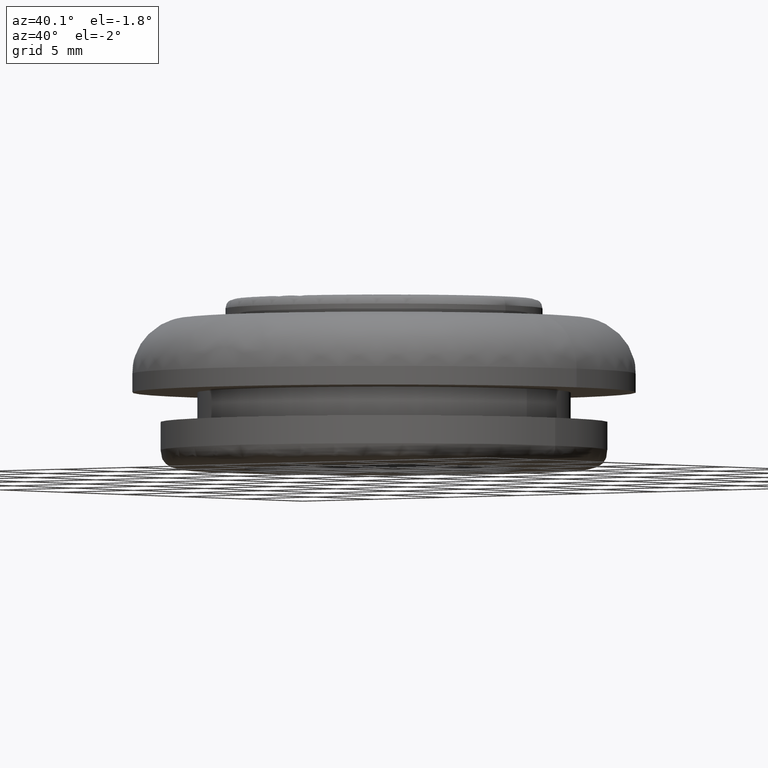
[diagram: clean part render]
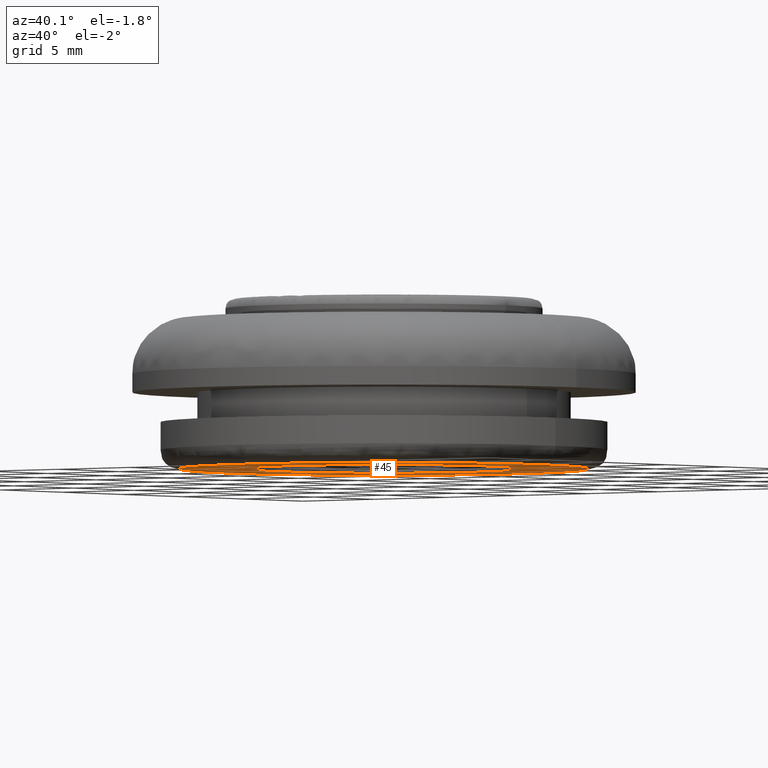
[diagram: same view with one face highlighted and labeled with its STEP entity id]
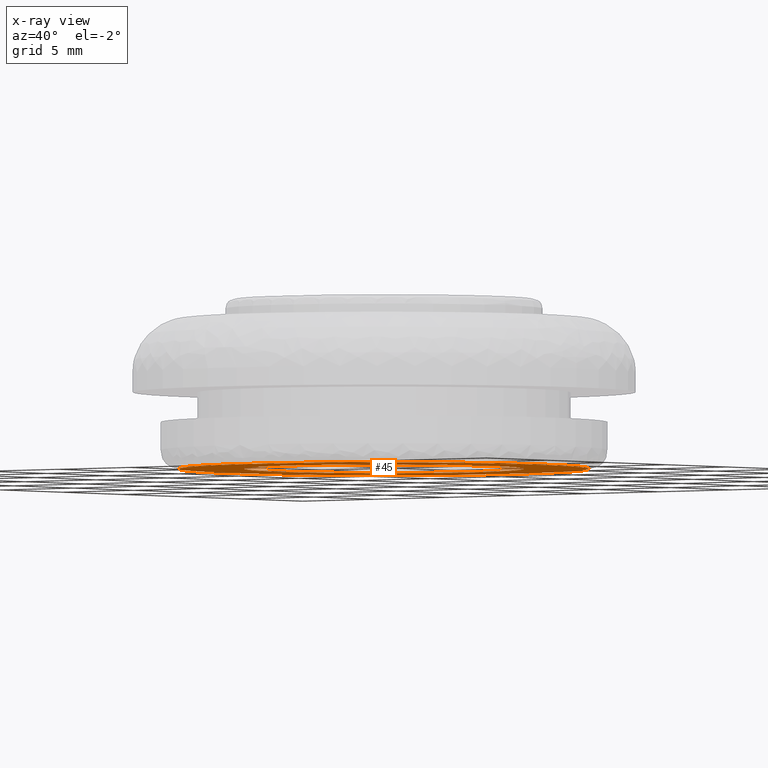
[diagram: x-ray of the same camera — body ghosted, the highlighted face saturated]
A machine part, auxiliary view. The second image highlights one B-rep face of the part: STEP entity #45.
The next image is the same camera in x-ray: the body ghosted, the highlighted face saturated — about 0% of this face is hidden behind the body in this view.
In plain terms, the highlighted planar face has unit normal (0, 0, 1).
Its self-contained STEP definition (entity closure, byte-faithful):
#45=ADVANCED_FACE('',(#118,#119),#117,.F.);
#117=PLANE('',#339);
#118=FACE_OUTER_BOUND('',#340,.T.);
#119=FACE_BOUND('',#341,.T.);
#336=CARTESIAN_POINT('',(2.62478069758E+002,-2.28630706599E+001,2.63637988893E+002));
#337=DIRECTION('',(0.00000000000E+000,0.00000000000E+000,1.00000000000E+000));
#338=DIRECTION('',(1.00000000000E+000,0.00000000000E+000,-0.00000000000E+000));
#339=AXIS2_PLACEMENT_3D('',#336,#337,#338);
#340=EDGE_LOOP('',(#574,#575));
#341=EDGE_LOOP('',(#576,#577));
#574=ORIENTED_EDGE('',*,*,#666,.T.);
#575=ORIENTED_EDGE('',*,*,#667,.T.);
#576=ORIENTED_EDGE('',*,*,#668,.F.);
#577=ORIENTED_EDGE('',*,*,#669,.F.);
#666=EDGE_CURVE('',#808,#809,#810,.T.);
#667=EDGE_CURVE('',#809,#808,#816,.T.);
#668=EDGE_CURVE('',#822,#823,#824,.T.);
#669=EDGE_CURVE('',#823,#822,#830,.T.);
#808=VERTEX_POINT('',#1080);
#809=VERTEX_POINT('',#1081);
#810=CIRCLE('',#1085,1.10000000000E+001);
#816=CIRCLE('',#1089,1.10000000000E+001);
#822=VERTEX_POINT('',#1090);
#823=VERTEX_POINT('',#1091);
#824=CIRCLE('',#1095,7.50000000000E+000);
#830=CIRCLE('',#1099,7.50000000000E+000);
#1080=CARTESIAN_POINT('',(2.65778069758E+002,0.00000000000E+000,2.63637988893E+002));
#1081=CARTESIAN_POINT('',(2.87778069758E+002,5.92118946467E-016,2.63637988893E+002));
#1082=CARTESIAN_POINT('',(2.76778069758E+002,0.00000000000E+000,2.63637988893E+002));
#1083=DIRECTION('',(-0.00000000000E+000,0.00000000000E+000,-1.00000000000E+000));
#1084=DIRECTION('',(-1.00000000000E+000,-1.22460635382E-016,0.00000000000E+000));
#1085=AXIS2_PLACEMENT_3D('',#1082,#1083,#1084);
#1086=CARTESIAN_POINT('',(2.76778069758E+002,0.00000000000E+000,2.63637988893E+002));
#1087=DIRECTION('',(-0.00000000000E+000,0.00000000000E+000,-1.00000000000E+000));
#1088=DIRECTION('',(-1.00000000000E+000,-1.22460635382E-016,0.00000000000E+000));
#1089=AXIS2_PLACEMENT_3D('',#1086,#1087,#1088);
#1090=CARTESIAN_POINT('',(2.84278069758E+002,8.88178419700E-016,2.63637988893E+002));
#1091=CARTESIAN_POINT('',(2.69278069758E+002,0.00000000000E+000,2.63637988893E+002));
#1092=CARTESIAN_POINT('',(2.76778069758E+002,0.00000000000E+000,2.63637988893E+002));
#1093=DIRECTION('',(-0.00000000000E+000,0.00000000000E+000,-1.00000000000E+000));
#1094=DIRECTION('',(-1.00000000000E+000,-1.22460635382E-016,0.00000000000E+000));
#1095=AXIS2_PLACEMENT_3D('',#1092,#1093,#1094);
#1096=CARTESIAN_POINT('',(2.76778069758E+002,0.00000000000E+000,2.63637988893E+002));
#1097=DIRECTION('',(-0.00000000000E+000,0.00000000000E+000,-1.00000000000E+000));
#1098=DIRECTION('',(-1.00000000000E+000,-1.22460635382E-016,0.00000000000E+000));
#1099=AXIS2_PLACEMENT_3D('',#1096,#1097,#1098);